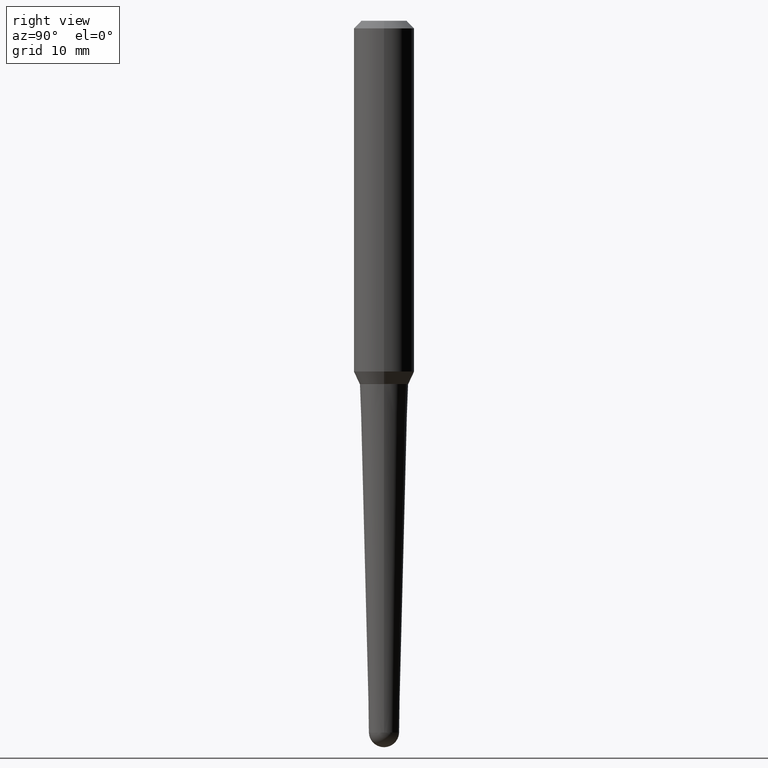
[diagram: clean part render]
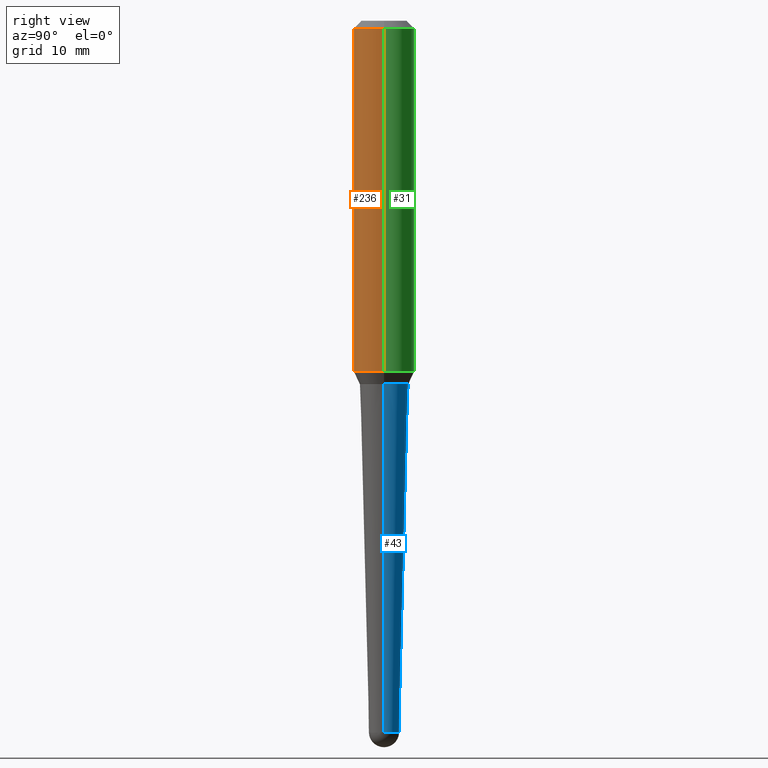
[diagram: same view with three faces highlighted in distinct colors, each labeled with its STEP entity id]
A machine part, right view with three faces highlighted in distinct colors.
Their STEP definitions:

[orange] entity #236 — the highlighted cylindrical surface (edge-blend (fillet) strip) has radius 3.175 mm, axis along (-0, 0, 1).
#22 = EDGE_CURVE ( 'NONE', #416, #427, #38, .T. ) ;
#32 = CARTESIAN_POINT ( 'NONE',  ( 0.1250000000000001665, -5.929872066628403637E-15, -1.448382861353968432 ) ) ;
#38 = LINE ( 'NONE', #76, #114 ) ;
#46 = DIRECTION ( 'NONE',  ( -2.445468806185136877E-29, 3.491481338843145188E-15, 1.000000000000000000 ) ) ;
#48 = DIRECTION ( 'NONE',  ( -2.445468806185136597E-29, 3.491481338843145583E-15, 1.000000000000000000 ) ) ;
#61 = VERTEX_POINT ( 'NONE', #137 ) ;
#65 = DIRECTION ( 'NONE',  ( -2.445468806185136597E-29, 3.491481338843145583E-15, 1.000000000000000000 ) ) ;
#76 = CARTESIAN_POINT ( 'NONE',  ( -0.1250000000000001110, 8.881784197001279934E-16, 5.931196827434234637E-16 ) ) ;
#79 = CARTESIAN_POINT ( 'NONE',  ( -1.450455682483482035E-44, 2.070866303999251778E-30, 5.931196827434296760E-16 ) ) ;
#90 = VERTEX_POINT ( 'NONE', #32 ) ;
#101 = EDGE_CURVE ( 'NONE', #90, #61, #176, .T. ) ;
#114 = VECTOR ( 'NONE', #216, 39.37007874015748143 ) ;
#124 = CIRCLE ( 'NONE', #397, 0.1250000000000000278 ) ;
#137 = CARTESIAN_POINT ( 'NONE',  ( 0.1250000000000000278, -9.819791265496320450E-16, -0.03125000000000004857 ) ) ;
#166 = EDGE_CURVE ( 'NONE', #416, #90, #317, .T. ) ;
#176 = LINE ( 'NONE', #428, #425 ) ;
#216 = DIRECTION ( 'NONE',  ( -2.445468806185136877E-29, 3.491481338843145188E-15, 1.000000000000000000 ) ) ;
#223 = AXIS2_PLACEMENT_3D ( 'NONE', #79, #48, #433 ) ;
#236 = ADVANCED_FACE ( 'NONE', ( #358 ), #362, .T. ) ;
#237 = CARTESIAN_POINT ( 'NONE',  ( 7.642090019328562375E-31, -1.091087918388484597E-16, -0.03125000000000004857 ) ) ;
#262 = ORIENTED_EDGE ( 'NONE', *, *, #22, .F. ) ;
#289 = CARTESIAN_POINT ( 'NONE',  ( 3.541975106854301275E-29, -5.057001731917619509E-15, -1.448382861353968432 ) ) ;
#297 = ORIENTED_EDGE ( 'NONE', *, *, #387, .F. ) ;
#309 = DIRECTION ( 'NONE',  ( 1.000000000000000000, -6.982962677686267499E-15, 0.000000000000000000 ) ) ;
#317 = CIRCLE ( 'NONE', #372, 0.1250000000000001665 ) ;
#336 = CARTESIAN_POINT ( 'NONE',  ( -0.1250000000000001665, -4.168823312217493488E-15, -1.448382861353968432 ) ) ;
#344 = ORIENTED_EDGE ( 'NONE', *, *, #166, .T. ) ;
#358 = FACE_OUTER_BOUND ( 'NONE', #443, .T. ) ;
#362 = CYLINDRICAL_SURFACE ( 'NONE', #223, 0.1250000000000001110 ) ;
#372 = AXIS2_PLACEMENT_3D ( 'NONE', #289, #440, #430 ) ;
#387 = EDGE_CURVE ( 'NONE', #427, #61, #124, .T. ) ;
#397 = AXIS2_PLACEMENT_3D ( 'NONE', #237, #65, #309 ) ;
#416 = VERTEX_POINT ( 'NONE', #336 ) ;
#425 = VECTOR ( 'NONE', #46, 39.37007874015748143 ) ;
#427 = VERTEX_POINT ( 'NONE', #442 ) ;
#428 = CARTESIAN_POINT ( 'NONE',  ( 0.1250000000000001110, -8.728703347107820569E-16, 5.931196827434357896E-16 ) ) ;
#430 = DIRECTION ( 'NONE',  ( 1.000000000000000000, -6.982962677686269077E-15, 0.000000000000000000 ) ) ;
#433 = DIRECTION ( 'NONE',  ( 1.000000000000000000, -6.982962677686266711E-15, 4.852736867747361723E-29 ) ) ;
#440 = DIRECTION ( 'NONE',  ( -2.445468806185136597E-29, 3.491481338843145583E-15, 1.000000000000000000 ) ) ;
#442 = CARTESIAN_POINT ( 'NONE',  ( -0.1250000000000000278, -1.694876842178107692E-15, -0.03125000000000004857 ) ) ;
#443 = EDGE_LOOP ( 'NONE', ( #262, #344, #447, #297 ) ) ;
#447 = ORIENTED_EDGE ( 'NONE', *, *, #101, .T. ) ;

[blue] entity #43 — the highlighted conical surface has half-angle 1.5 deg.
#3 = EDGE_CURVE ( 'NONE', #26, #160, #276, .T. ) ;
#15 = CARTESIAN_POINT ( 'NONE',  ( -0.06247858281097278671, -9.818001671690315419E-15, -2.939136059269242374 ) ) ;
#26 = VERTEX_POINT ( 'NONE', #319 ) ;
#43 = ADVANCED_FACE ( 'NONE', ( #207 ), #402, .T. ) ;
#59 = ORIENTED_EDGE ( 'NONE', *, *, #314, .T. ) ;
#66 = VECTOR ( 'NONE', #250, 39.37007874015748854 ) ;
#68 = CARTESIAN_POINT ( 'NONE',  ( 7.187565550076840817E-29, -1.026193870325954003E-14, -2.939136059269242374 ) ) ;
#75 = EDGE_CURVE ( 'NONE', #165, #226, #278, .T. ) ;
#105 = DIRECTION ( 'NONE',  ( 1.000000000000000000, -6.982962677686277755E-15, 0.000000000000000000 ) ) ;
#113 = EDGE_LOOP ( 'NONE', ( #152, #59, #359, #123, #228 ) ) ;
#123 = ORIENTED_EDGE ( 'NONE', *, *, #3, .F. ) ;
#131 = EDGE_CURVE ( 'NONE', #160, #337, #436, .T. ) ;
#149 = AXIS2_PLACEMENT_3D ( 'NONE', #179, #459, #316 ) ;
#152 = ORIENTED_EDGE ( 'NONE', *, *, #75, .T. ) ;
#160 = VERTEX_POINT ( 'NONE', #392 ) ;
#165 = VERTEX_POINT ( 'NONE', #366 ) ;
#179 = CARTESIAN_POINT ( 'NONE',  ( 7.187565550076840817E-29, -1.026193870325954003E-14, -2.939136059269242374 ) ) ;
#181 = CARTESIAN_POINT ( 'NONE',  ( 3.668203209277704895E-29, -5.237222008264718177E-15, -1.500000000000000222 ) ) ;
#191 = CARTESIAN_POINT ( 'NONE',  ( 7.187565550076840817E-29, -1.026193870325954003E-14, -2.939136059269242374 ) ) ;
#207 = FACE_OUTER_BOUND ( 'NONE', #113, .T. ) ;
#226 = VERTEX_POINT ( 'NONE', #328 ) ;
#228 = ORIENTED_EDGE ( 'NONE', *, *, #335, .T. ) ;
#234 = AXIS2_PLACEMENT_3D ( 'NONE', #191, #333, #398 ) ;
#243 = CARTESIAN_POINT ( 'NONE',  ( 0.06247858281097278671, -1.069822431518329472E-14, -2.939136059269242374 ) ) ;
#247 = AXIS2_PLACEMENT_3D ( 'NONE', #181, #462, #284 ) ;
#250 = DIRECTION ( 'NONE',  ( 0.02617694830787310745, 3.307492242340416220E-15, 0.9996573249755572599 ) ) ;
#256 = DIRECTION ( 'NONE',  ( -0.02617694830787310745, 3.676283300035285798E-15, 0.9996573249755572599 ) ) ;
#276 = LINE ( 'NONE', #243, #66 ) ;
#278 = CIRCLE ( 'NONE', #417, 0.06247858281097278671 ) ;
#279 = VECTOR ( 'NONE', #256, 39.37007874015748854 ) ;
#280 = DIRECTION ( 'NONE',  ( -2.445468806185136597E-29, 3.491481338843145583E-15, 1.000000000000000000 ) ) ;
#284 = DIRECTION ( 'NONE',  ( 1.000000000000000000, -6.982962677686267499E-15, 0.000000000000000000 ) ) ;
#292 = LINE ( 'NONE', #15, #279 ) ;
#295 = CIRCLE ( 'NONE', #234, 0.06247858281097278671 ) ;
#314 = EDGE_CURVE ( 'NONE', #226, #337, #292, .T. ) ;
#316 = DIRECTION ( 'NONE',  ( 1.000000000000000000, -6.982962677686277755E-15, 0.000000000000000000 ) ) ;
#319 = CARTESIAN_POINT ( 'NONE',  ( 0.06247858281097278671, -8.317442804968401393E-15, -2.939136059269242374 ) ) ;
#328 = CARTESIAN_POINT ( 'NONE',  ( -0.06247858281097278671, -7.171758939812435500E-15, -2.939136059269242374 ) ) ;
#333 = DIRECTION ( 'NONE',  ( -2.445468806185136597E-29, 3.491481338843145583E-15, 1.000000000000000000 ) ) ;
#335 = EDGE_CURVE ( 'NONE', #26, #165, #295, .T. ) ;
#337 = VERTEX_POINT ( 'NONE', #396 ) ;
#359 = ORIENTED_EDGE ( 'NONE', *, *, #131, .F. ) ;
#366 = CARTESIAN_POINT ( 'NONE',  ( 4.362856119238250042E-16, 0.06247858281096245470, -2.939136059269242374 ) ) ;
#392 = CARTESIAN_POINT ( 'NONE',  ( 0.1001636867863858471, -5.936661294753508061E-15, -1.500000000000000222 ) ) ;
#396 = CARTESIAN_POINT ( 'NONE',  ( -0.1001636867863858471, -4.525516207934555582E-15, -1.500000000000000222 ) ) ;
#398 = DIRECTION ( 'NONE',  ( 1.000000000000000000, -6.982962677686277755E-15, 0.000000000000000000 ) ) ;
#402 = CONICAL_SURFACE ( 'NONE', #149, 0.06247858281097278671, 0.02617993877991489637 ) ;
#417 = AXIS2_PLACEMENT_3D ( 'NONE', #68, #280, #105 ) ;
#436 = CIRCLE ( 'NONE', #247, 0.1001636867863858471 ) ;
#459 = DIRECTION ( 'NONE',  ( -2.445468806185136597E-29, 3.491481338843145583E-15, 1.000000000000000000 ) ) ;
#462 = DIRECTION ( 'NONE',  ( -2.445468806185136597E-29, 3.491481338843145583E-15, 1.000000000000000000 ) ) ;

[green] entity #31 — the highlighted cylindrical surface (edge-blend (fillet) strip) has radius 3.175 mm, axis along (-0, 0, 1).
#7 = DIRECTION ( 'NONE',  ( 1.000000000000000000, -6.982962677686266711E-15, 4.852736867747361723E-29 ) ) ;
#13 = ORIENTED_EDGE ( 'NONE', *, *, #101, .F. ) ;
#22 = EDGE_CURVE ( 'NONE', #416, #427, #38, .T. ) ;
#31 = ADVANCED_FACE ( 'NONE', ( #209 ), #70, .T. ) ;
#32 = CARTESIAN_POINT ( 'NONE',  ( 0.1250000000000001665, -5.929872066628403637E-15, -1.448382861353968432 ) ) ;
#35 = CIRCLE ( 'NONE', #52, 0.1250000000000001665 ) ;
#38 = LINE ( 'NONE', #76, #114 ) ;
#46 = DIRECTION ( 'NONE',  ( -2.445468806185136877E-29, 3.491481338843145188E-15, 1.000000000000000000 ) ) ;
#50 = DIRECTION ( 'NONE',  ( -2.445468806185136597E-29, 3.491481338843145583E-15, 1.000000000000000000 ) ) ;
#52 = AXIS2_PLACEMENT_3D ( 'NONE', #186, #50, #221 ) ;
#61 = VERTEX_POINT ( 'NONE', #137 ) ;
#70 = CYLINDRICAL_SURFACE ( 'NONE', #219, 0.1250000000000001110 ) ;
#76 = CARTESIAN_POINT ( 'NONE',  ( -0.1250000000000001110, 8.881784197001279934E-16, 5.931196827434234637E-16 ) ) ;
#80 = ORIENTED_EDGE ( 'NONE', *, *, #185, .T. ) ;
#90 = VERTEX_POINT ( 'NONE', #32 ) ;
#101 = EDGE_CURVE ( 'NONE', #90, #61, #176, .T. ) ;
#102 = DIRECTION ( 'NONE',  ( -2.445468806185136597E-29, 3.491481338843145583E-15, 1.000000000000000000 ) ) ;
#114 = VECTOR ( 'NONE', #216, 39.37007874015748143 ) ;
#121 = EDGE_LOOP ( 'NONE', ( #80, #364, #451, #13 ) ) ;
#137 = CARTESIAN_POINT ( 'NONE',  ( 0.1250000000000000278, -9.819791265496320450E-16, -0.03125000000000004857 ) ) ;
#141 = CIRCLE ( 'NONE', #211, 0.1250000000000000278 ) ;
#151 = CARTESIAN_POINT ( 'NONE',  ( 7.642090019328562375E-31, -1.091087918388484597E-16, -0.03125000000000004857 ) ) ;
#171 = CARTESIAN_POINT ( 'NONE',  ( -1.450455682483482035E-44, 2.070866303999251778E-30, 5.931196827434296760E-16 ) ) ;
#176 = LINE ( 'NONE', #428, #425 ) ;
#185 = EDGE_CURVE ( 'NONE', #90, #416, #35, .T. ) ;
#186 = CARTESIAN_POINT ( 'NONE',  ( 3.541975106854301275E-29, -5.057001731917619509E-15, -1.448382861353968432 ) ) ;
#209 = FACE_OUTER_BOUND ( 'NONE', #121, .T. ) ;
#211 = AXIS2_PLACEMENT_3D ( 'NONE', #151, #435, #260 ) ;
#215 = EDGE_CURVE ( 'NONE', #61, #427, #141, .T. ) ;
#216 = DIRECTION ( 'NONE',  ( -2.445468806185136877E-29, 3.491481338843145188E-15, 1.000000000000000000 ) ) ;
#219 = AXIS2_PLACEMENT_3D ( 'NONE', #171, #102, #7 ) ;
#221 = DIRECTION ( 'NONE',  ( 1.000000000000000000, -6.982962677686269077E-15, 0.000000000000000000 ) ) ;
#260 = DIRECTION ( 'NONE',  ( 1.000000000000000000, -6.982962677686267499E-15, 0.000000000000000000 ) ) ;
#336 = CARTESIAN_POINT ( 'NONE',  ( -0.1250000000000001665, -4.168823312217493488E-15, -1.448382861353968432 ) ) ;
#364 = ORIENTED_EDGE ( 'NONE', *, *, #22, .T. ) ;
#416 = VERTEX_POINT ( 'NONE', #336 ) ;
#425 = VECTOR ( 'NONE', #46, 39.37007874015748143 ) ;
#427 = VERTEX_POINT ( 'NONE', #442 ) ;
#428 = CARTESIAN_POINT ( 'NONE',  ( 0.1250000000000001110, -8.728703347107820569E-16, 5.931196827434357896E-16 ) ) ;
#435 = DIRECTION ( 'NONE',  ( -2.445468806185136597E-29, 3.491481338843145583E-15, 1.000000000000000000 ) ) ;
#442 = CARTESIAN_POINT ( 'NONE',  ( -0.1250000000000000278, -1.694876842178107692E-15, -0.03125000000000004857 ) ) ;
#451 = ORIENTED_EDGE ( 'NONE', *, *, #215, .F. ) ;